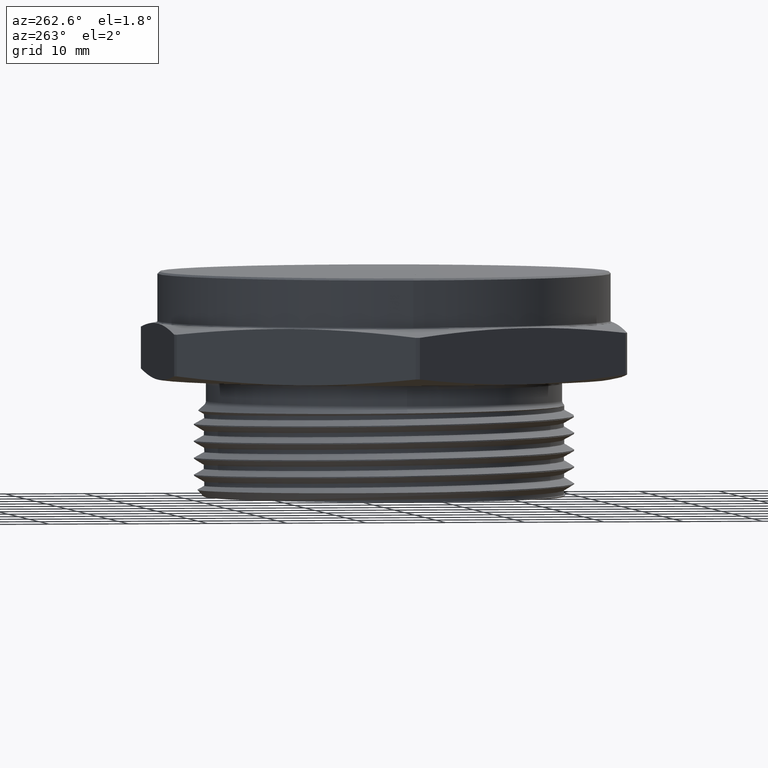
[diagram: clean part render]
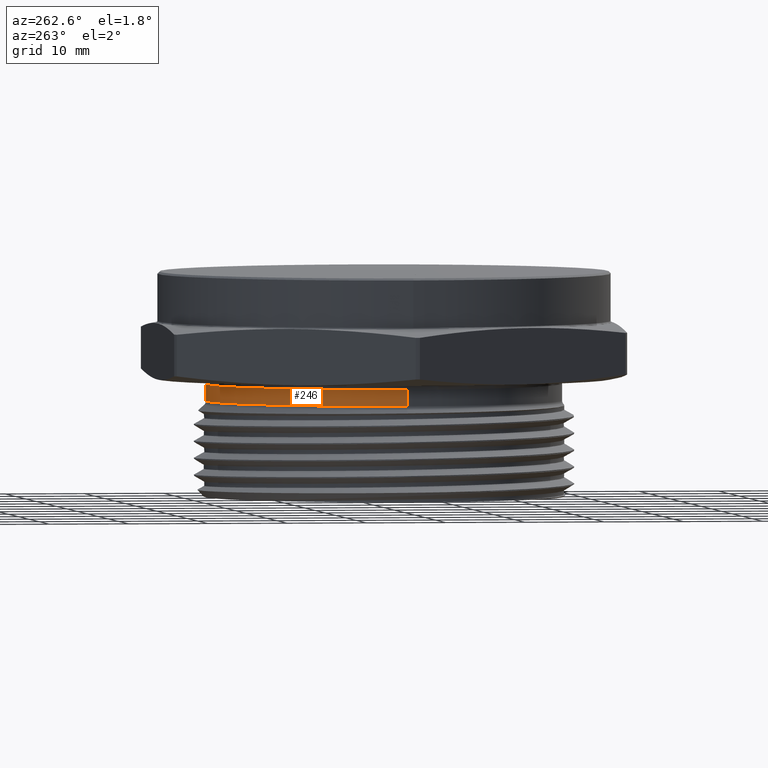
[diagram: same view with one face highlighted and labeled with its STEP entity id]
A machine part, auxiliary view. The second image highlights one B-rep face of the part: STEP entity #246.
In plain terms, the highlighted cylindrical surface (partial cylindrical patch) has radius 22.3012 mm, axis along (-0, -0, 1).
Its self-contained STEP definition (entity closure, byte-faithful):
#47 = VERTEX_POINT ( 'NONE', #2715 ) ;
#48 = VERTEX_POINT ( 'NONE', #2623 ) ;
#52 = VERTEX_POINT ( 'NONE', #2609 ) ;
#63 = VERTEX_POINT ( 'NONE', #2549 ) ;
#87 = EDGE_LOOP ( 'NONE', ( #105, #106, #107, #108 ) ) ;
#105 = ORIENTED_EDGE ( 'NONE', *, *, #630, .T. ) ;
#106 = ORIENTED_EDGE ( 'NONE', *, *, #631, .T. ) ;
#107 = ORIENTED_EDGE ( 'NONE', *, *, #632, .F. ) ;
#108 = ORIENTED_EDGE ( 'NONE', *, *, #633, .F. ) ;
#246 = ADVANCED_FACE ( 'NONE', ( #336 ), #335, .T. ) ;
#335 = CYLINDRICAL_SURFACE ( 'NONE', #379, 0.8780000000000000000 ) ;
#336 = FACE_OUTER_BOUND ( 'NONE', #87, .T. ) ;
#379 = AXIS2_PLACEMENT_3D ( 'NONE', #2655, #2653, #2656 ) ;
#393 = AXIS2_PLACEMENT_3D ( 'NONE', #922, #921, #920 ) ;
#394 = AXIS2_PLACEMENT_3D ( 'NONE', #919, #918, #917 ) ;
#490 = CIRCLE ( 'NONE', #393, 0.8780000000000000000 ) ;
#492 = LINE ( 'NONE', #923, #495 ) ;
#494 = CIRCLE ( 'NONE', #394, 0.8780000000000000000 ) ;
#495 = VECTOR ( 'NONE', #935, 39.37007874015748100 ) ;
#496 = LINE ( 'NONE', #931, #498 ) ;
#498 = VECTOR ( 'NONE', #924, 39.37007874015748100 ) ;
#630 = EDGE_CURVE ( 'NONE', #63, #52, #490, .T. ) ;
#631 = EDGE_CURVE ( 'NONE', #52, #48, #492, .T. ) ;
#632 = EDGE_CURVE ( 'NONE', #47, #48, #494, .T. ) ;
#633 = EDGE_CURVE ( 'NONE', #63, #47, #496, .T. ) ;
#917 = DIRECTION ( 'NONE',  ( 1.000000000000000000, 0.0000000000000000000, 0.0000000000000000000 ) ) ;
#918 = DIRECTION ( 'NONE',  ( -0.0000000000000000000, -0.0000000000000000000, 1.000000000000000000 ) ) ;
#919 = CARTESIAN_POINT ( 'NONE',  ( 0.0000000000000000000, 0.0000000000000000000, -0.02500000000000003600 ) ) ;
#920 = DIRECTION ( 'NONE',  ( 1.000000000000000000, 0.0000000000000000000, 0.0000000000000000000 ) ) ;
#921 = DIRECTION ( 'NONE',  ( -0.0000000000000000000, -0.0000000000000000000, 1.000000000000000000 ) ) ;
#922 = CARTESIAN_POINT ( 'NONE',  ( 0.0000000000000000000, 0.0000000000000000000, -0.1073223304703362400 ) ) ;
#923 = CARTESIAN_POINT ( 'NONE',  ( -0.8780000000000000000, 1.075239889651376100E-016, 0.0000000000000000000 ) ) ;
#924 = DIRECTION ( 'NONE',  ( -0.0000000000000000000, -0.0000000000000000000, 1.000000000000000000 ) ) ;
#931 = CARTESIAN_POINT ( 'NONE',  ( 0.8780000000000000000, 0.0000000000000000000, 0.0000000000000000000 ) ) ;
#935 = DIRECTION ( 'NONE',  ( -0.0000000000000000000, -0.0000000000000000000, 1.000000000000000000 ) ) ;
#2549 = CARTESIAN_POINT ( 'NONE',  ( 0.8780000000000000000, 0.0000000000000000000, -0.1073223304703362400 ) ) ;
#2609 = CARTESIAN_POINT ( 'NONE',  ( -0.8780000000000000000, 1.079723523937774400E-016, -0.1073223304703362400 ) ) ;
#2623 = CARTESIAN_POINT ( 'NONE',  ( -0.8780000000000000000, 1.075239889651376100E-016, -0.02500000000000003600 ) ) ;
#2653 = DIRECTION ( 'NONE',  ( -0.0000000000000000000, -0.0000000000000000000, 1.000000000000000000 ) ) ;
#2655 = CARTESIAN_POINT ( 'NONE',  ( 0.0000000000000000000, 0.0000000000000000000, 0.0000000000000000000 ) ) ;
#2656 = DIRECTION ( 'NONE',  ( 1.000000000000000000, 0.0000000000000000000, 0.0000000000000000000 ) ) ;
#2715 = CARTESIAN_POINT ( 'NONE',  ( 0.8780000000000000000, 0.0000000000000000000, -0.02500000000000003600 ) ) ;